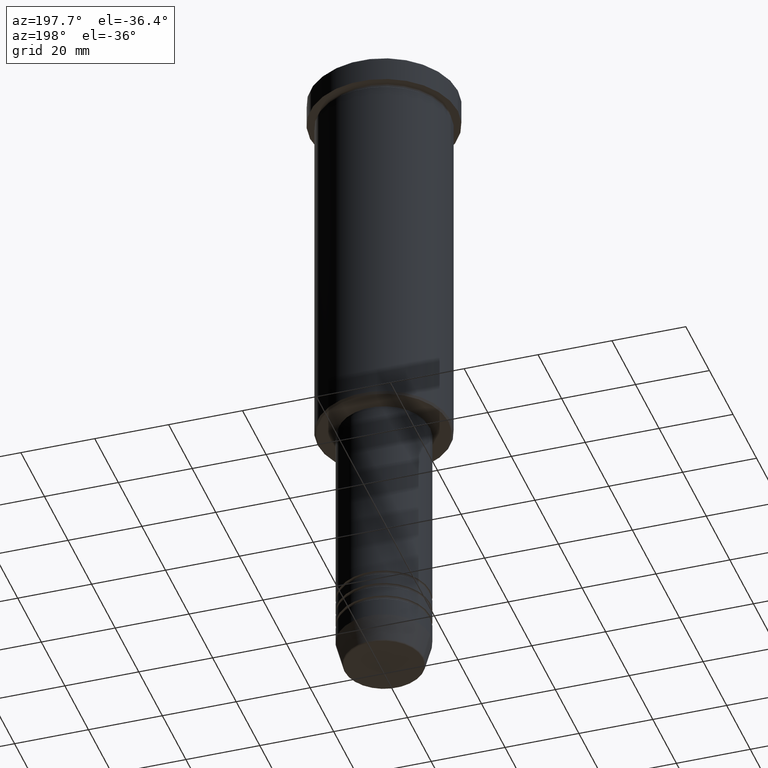
[diagram: clean part render]
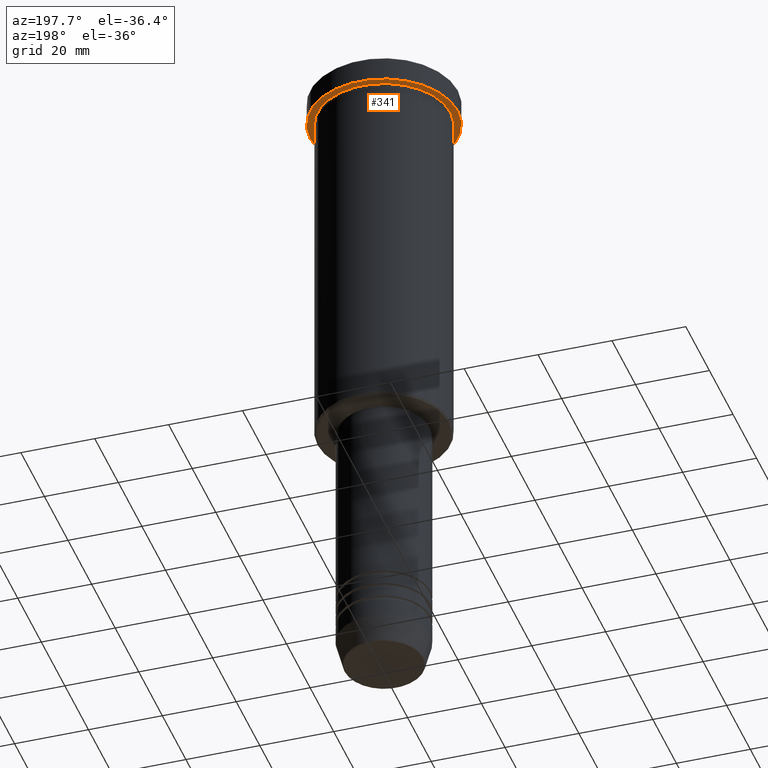
[diagram: same view with one face highlighted and labeled with its STEP entity id]
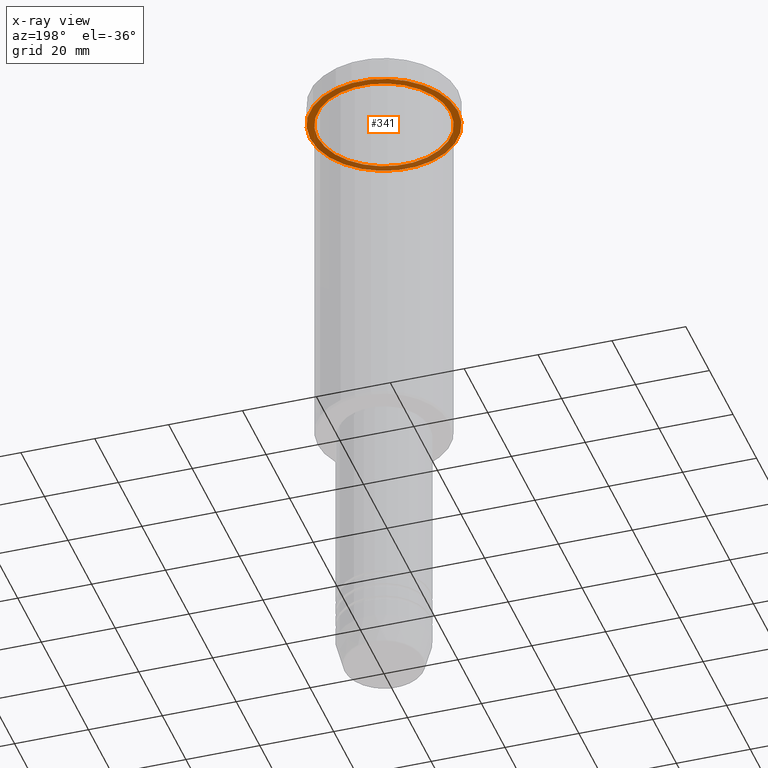
[diagram: x-ray of the same camera — body ghosted, the highlighted face saturated]
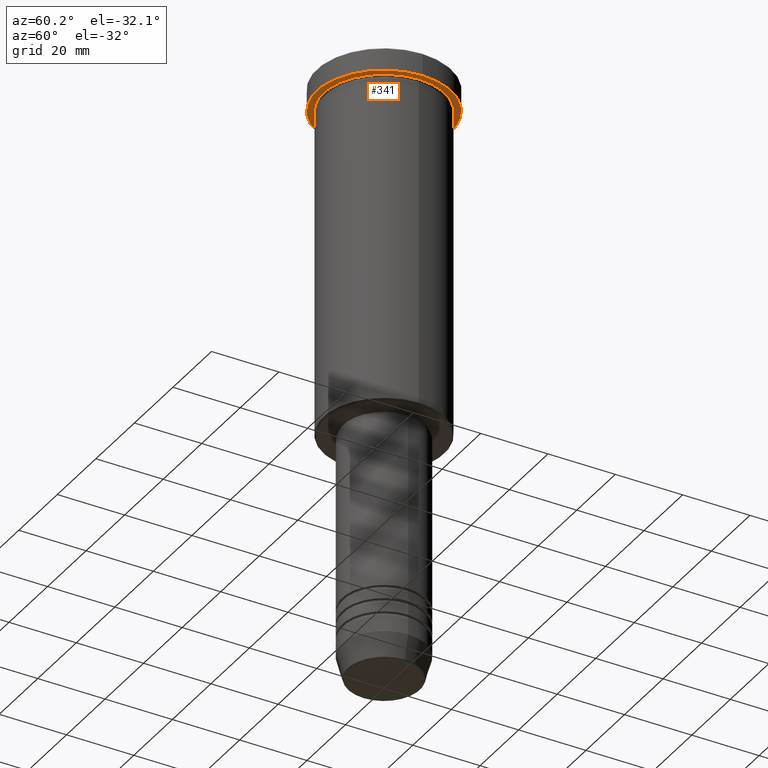
[diagram: same view with one face highlighted and labeled with its STEP entity id]
A machine part, auxiliary view. The second image highlights one B-rep face of the part: STEP entity #341.
The next image is the same camera in x-ray: the body ghosted, the highlighted face saturated — about 35% of this face is hidden behind the body in this view.
A second angle (auxiliary view) of the same face is appended — the face is thin or edge-on in the first view.
In plain terms, the highlighted planar face has unit normal (0, 0, -1).
Its self-contained STEP definition (entity closure, byte-faithful):
#5 = EDGE_CURVE ( 'NONE', #1145, #783, #471, .T. ) ;
#15 = CARTESIAN_POINT ( 'NONE',  ( 0.000000000000000000, 0.000000000000000000, -6.999999999999995559 ) ) ;
#24 = AXIS2_PLACEMENT_3D ( 'NONE', #1098, #77, #1003 ) ;
#37 = ORIENTED_EDGE ( 'NONE', *, *, #5, .F. ) ;
#52 = ORIENTED_EDGE ( 'NONE', *, *, #392, .F. ) ;
#77 = DIRECTION ( 'NONE',  ( -0.000000000000000000, -0.000000000000000000, 1.000000000000000000 ) ) ;
#149 = EDGE_CURVE ( 'NONE', #811, #261, #287, .T. ) ;
#170 = AXIS2_PLACEMENT_3D ( 'NONE', #715, #607, #509 ) ;
#261 = VERTEX_POINT ( 'NONE', #890 ) ;
#287 = CIRCLE ( 'NONE', #1000, 18.00000000000000000 ) ;
#326 = EDGE_CURVE ( 'NONE', #261, #811, #942, .T. ) ;
#335 = DIRECTION ( 'NONE',  ( -0.000000000000000000, -0.000000000000000000, 1.000000000000000000 ) ) ;
#341 = ADVANCED_FACE ( 'NONE', ( #991, #701 ), #883, .T. ) ;
#345 = AXIS2_PLACEMENT_3D ( 'NONE', #1161, #335, #1171 ) ;
#367 = DIRECTION ( 'NONE',  ( 1.000000000000000000, 0.000000000000000000, 0.000000000000000000 ) ) ;
#374 = DIRECTION ( 'NONE',  ( -0.000000000000000000, -0.000000000000000000, 1.000000000000000000 ) ) ;
#392 = EDGE_CURVE ( 'NONE', #783, #1145, #653, .T. ) ;
#409 = ORIENTED_EDGE ( 'NONE', *, *, #326, .T. ) ;
#410 = CARTESIAN_POINT ( 'NONE',  ( -18.00000000000000000, 0.000000000000000000, -6.999999999999995559 ) ) ;
#414 = CARTESIAN_POINT ( 'NONE',  ( 20.00000000000000000, 0.000000000000000000, -6.999999999999995559 ) ) ;
#453 = EDGE_LOOP ( 'NONE', ( #620, #409 ) ) ;
#471 = CIRCLE ( 'NONE', #24, 20.00000000000000000 ) ;
#493 = CARTESIAN_POINT ( 'NONE',  ( -20.00000000000000000, 2.449293598294706513E-15, -6.999999999999995559 ) ) ;
#509 = DIRECTION ( 'NONE',  ( -1.000000000000000000, 0.000000000000000000, -0.000000000000000000 ) ) ;
#550 = AXIS2_PLACEMENT_3D ( 'NONE', #15, #931, #367 ) ;
#607 = DIRECTION ( 'NONE',  ( 0.000000000000000000, 0.000000000000000000, -1.000000000000000000 ) ) ;
#620 = ORIENTED_EDGE ( 'NONE', *, *, #149, .T. ) ;
#653 = CIRCLE ( 'NONE', #550, 20.00000000000000000 ) ;
#679 = EDGE_LOOP ( 'NONE', ( #52, #37 ) ) ;
#701 = FACE_OUTER_BOUND ( 'NONE', #679, .T. ) ;
#715 = CARTESIAN_POINT ( 'NONE',  ( 0.000000000000000000, 20.00000000000000000, -6.999999999999995559 ) ) ;
#783 = VERTEX_POINT ( 'NONE', #414 ) ;
#811 = VERTEX_POINT ( 'NONE', #410 ) ;
#883 = PLANE ( 'NONE',  #170 ) ;
#890 = CARTESIAN_POINT ( 'NONE',  ( 18.00000000000000000, 2.204364238465235428E-15, -6.999999999999995559 ) ) ;
#931 = DIRECTION ( 'NONE',  ( -0.000000000000000000, -0.000000000000000000, 1.000000000000000000 ) ) ;
#942 = CIRCLE ( 'NONE', #345, 18.00000000000000000 ) ;
#957 = CARTESIAN_POINT ( 'NONE',  ( 0.000000000000000000, 0.000000000000000000, -6.999999999999995559 ) ) ;
#991 = FACE_BOUND ( 'NONE', #453, .T. ) ;
#1000 = AXIS2_PLACEMENT_3D ( 'NONE', #957, #374, #1028 ) ;
#1003 = DIRECTION ( 'NONE',  ( 1.000000000000000000, 0.000000000000000000, 0.000000000000000000 ) ) ;
#1028 = DIRECTION ( 'NONE',  ( -1.000000000000000000, 0.000000000000000000, 0.000000000000000000 ) ) ;
#1098 = CARTESIAN_POINT ( 'NONE',  ( 0.000000000000000000, 0.000000000000000000, -6.999999999999995559 ) ) ;
#1145 = VERTEX_POINT ( 'NONE', #493 ) ;
#1161 = CARTESIAN_POINT ( 'NONE',  ( 0.000000000000000000, 0.000000000000000000, -6.999999999999995559 ) ) ;
#1171 = DIRECTION ( 'NONE',  ( -1.000000000000000000, 0.000000000000000000, 0.000000000000000000 ) ) ;